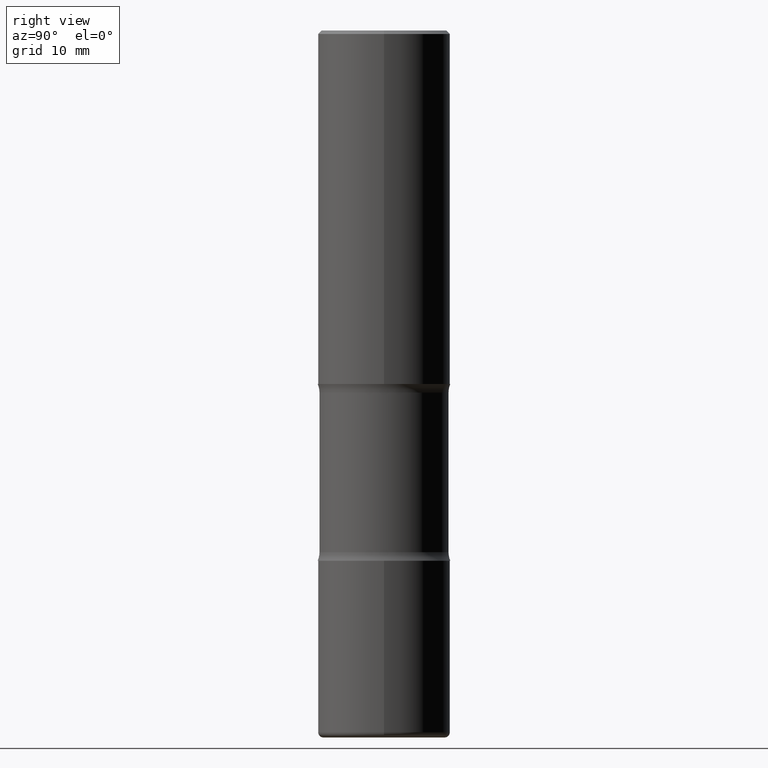
[diagram: clean part render]
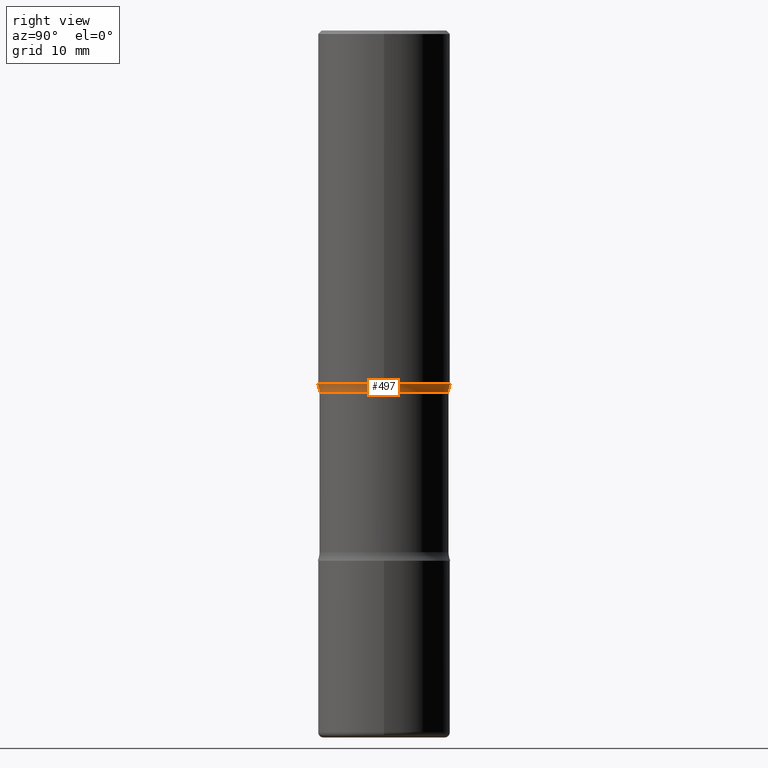
[diagram: same view with one face highlighted and labeled with its STEP entity id]
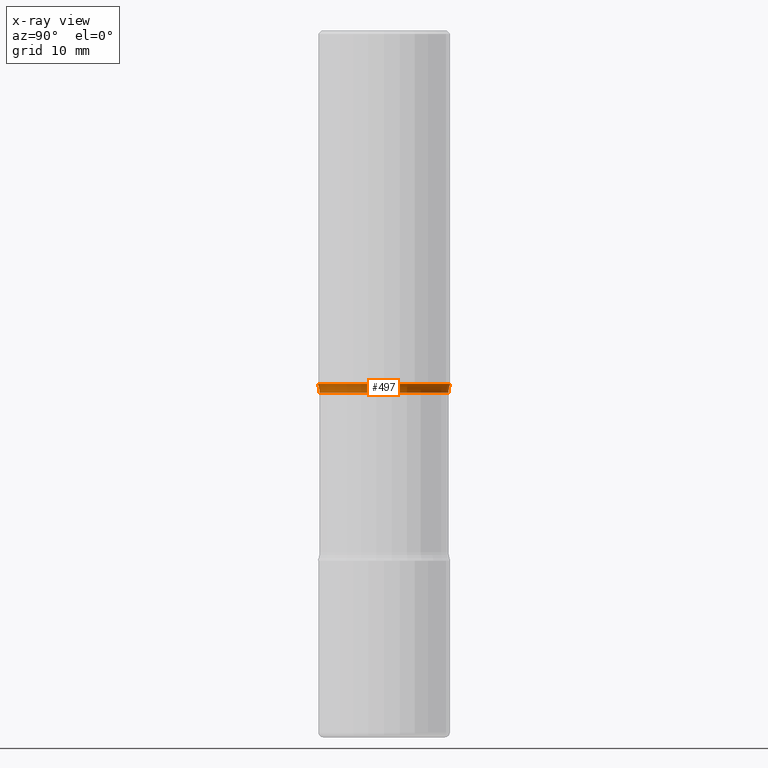
[diagram: x-ray of the same camera — body ghosted, the highlighted face saturated]
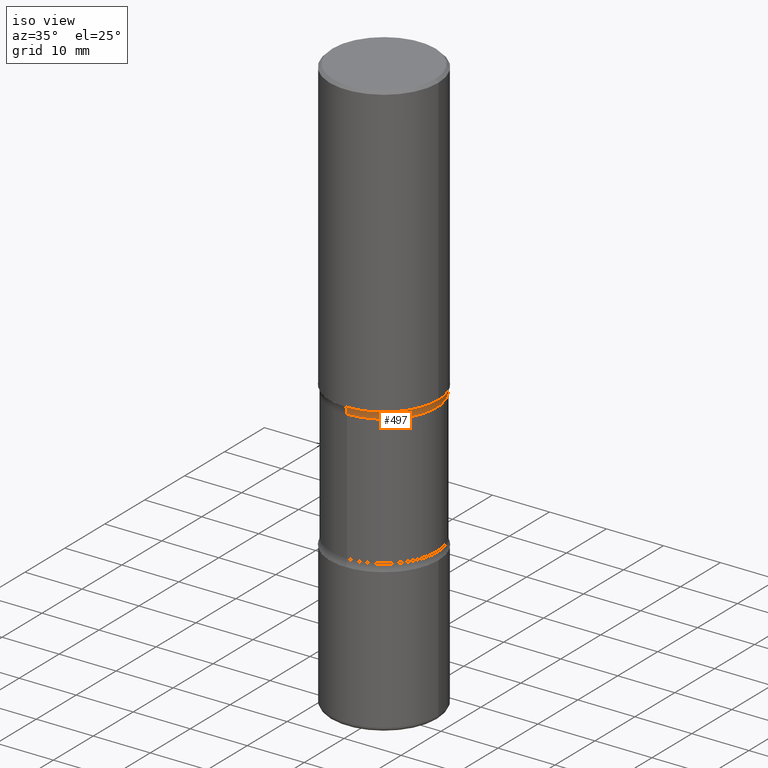
[diagram: same view with one face highlighted and labeled with its STEP entity id]
A machine part, right view. The second image highlights one B-rep face of the part: STEP entity #497.
The next image is the same camera in x-ray: the body ghosted, the highlighted face saturated — about 0% of this face is hidden behind the body in this view.
A second angle (iso view) of the same face is appended — the face is thin or edge-on in the first view.
In plain terms, the highlighted toroidal blend (fillet) surface has major radius 12.446 mm and minor (blend) radius 3.175 mm.
Its self-contained STEP definition (entity closure, byte-faithful):
#1 = CARTESIAN_POINT ( 'NONE',  ( 5.191958536339396350E-29, -6.894495272493812152E-15, -2.048989794855665458 ) ) ;
#2 = CARTESIAN_POINT ( 'NONE',  ( 3.421651712066320939E-15, 0.4899999999999929412, -2.048989794855667235 ) ) ;
#37 = CARTESIAN_POINT ( 'NONE',  ( 5.081490676730588573E-29, -6.710079843915434973E-15, -2.000000000000000000 ) ) ;
#73 = TOROIDAL_SURFACE ( 'NONE', #458, 0.4899999999999998246, 0.1250000000000001110 ) ;
#89 = DIRECTION ( 'NONE',  ( 6.982962677686265922E-15, 1.000000000000000000, -3.742257525567486660E-15 ) ) ;
#99 = CIRCLE ( 'NONE', #409, 0.3649999999999997136 ) ;
#108 = CIRCLE ( 'NONE', #119, 0.1250000000000001110 ) ;
#114 = ORIENTED_EDGE ( 'NONE', *, *, #537, .F. ) ;
#119 = AXIS2_PLACEMENT_3D ( 'NONE', #125, #127, #466 ) ;
#123 = DIRECTION ( 'NONE',  ( 2.254915741824821778E-29, -3.764364172614001380E-15, -1.000000000000000000 ) ) ;
#125 = CARTESIAN_POINT ( 'NONE',  ( -3.361644018907997202E-15, -0.4900000000000067080, -2.048989794855663238 ) ) ;
#127 = DIRECTION ( 'NONE',  ( 1.000000000000000000, -6.860497997771530774E-15, 4.837457028734946037E-29 ) ) ;
#156 = ORIENTED_EDGE ( 'NONE', *, *, #459, .F. ) ;
#171 = CARTESIAN_POINT ( 'NONE',  ( -2.572686749164276610E-15, -0.3750000000000072164, -1.999999999999998668 ) ) ;
#230 = CARTESIAN_POINT ( 'NONE',  ( 2.548781377355537205E-15, 0.3649999999999928302, -2.048989794855666791 ) ) ;
#251 = DIRECTION ( 'NONE',  ( 6.982962677686265922E-15, 1.000000000000000000, -3.764364172614001380E-15 ) ) ;
#260 = CARTESIAN_POINT ( 'NONE',  ( 2.618611004132404053E-15, 0.3749999999999938383, -2.000000000000001332 ) ) ;
#277 = VERTEX_POINT ( 'NONE', #230 ) ;
#295 = FACE_OUTER_BOUND ( 'NONE', #538, .T. ) ;
#320 = DIRECTION ( 'NONE',  ( 2.254915741824821778E-29, -3.764364172614001380E-15, -1.000000000000000000 ) ) ;
#326 = ORIENTED_EDGE ( 'NONE', *, *, #512, .T. ) ;
#333 = CARTESIAN_POINT ( 'NONE',  ( -2.538384259175415591E-15, -0.3650000000000065969, -2.048989794855664126 ) ) ;
#343 = DIRECTION ( 'NONE',  ( 2.254915741824821778E-29, -3.764364172614001380E-15, -1.000000000000000000 ) ) ;
#347 = CIRCLE ( 'NONE', #558, 0.3750000000000004996 ) ;
#356 = CIRCLE ( 'NONE', #469, 0.1250000000000001110 ) ;
#361 = DIRECTION ( 'NONE',  ( 6.982962677686266711E-15, 1.000000000000000000, -3.642463991552346225E-15 ) ) ;
#375 = DIRECTION ( 'NONE',  ( -6.982962677686264344E-15, -1.000000000000000000, 0.000000000000000000 ) ) ;
#390 = EDGE_CURVE ( 'NONE', #498, #433, #347, .T. ) ;
#409 = AXIS2_PLACEMENT_3D ( 'NONE', #1, #343, #89 ) ;
#410 = VERTEX_POINT ( 'NONE', #333 ) ;
#433 = VERTEX_POINT ( 'NONE', #171 ) ;
#458 = AXIS2_PLACEMENT_3D ( 'NONE', #511, #123, #251 ) ;
#459 = EDGE_CURVE ( 'NONE', #277, #410, #99, .T. ) ;
#460 = ORIENTED_EDGE ( 'NONE', *, *, #390, .T. ) ;
#466 = DIRECTION ( 'NONE',  ( 6.860497997771531562E-15, 1.000000000000000000, 0.000000000000000000 ) ) ;
#469 = AXIS2_PLACEMENT_3D ( 'NONE', #2, #474, #375 ) ;
#474 = DIRECTION ( 'NONE',  ( -1.000000000000000000, 6.982962677686265922E-15, -4.883557194083112901E-29 ) ) ;
#497 = ADVANCED_FACE ( 'NONE', ( #295 ), #73, .F. ) ;
#498 = VERTEX_POINT ( 'NONE', #260 ) ;
#511 = CARTESIAN_POINT ( 'NONE',  ( 5.201504553319908584E-29, -6.880824832852173514E-15, -2.048989794855665458 ) ) ;
#512 = EDGE_CURVE ( 'NONE', #277, #498, #356, .T. ) ;
#537 = EDGE_CURVE ( 'NONE', #410, #433, #108, .T. ) ;
#538 = EDGE_LOOP ( 'NONE', ( #114, #156, #326, #460 ) ) ;
#558 = AXIS2_PLACEMENT_3D ( 'NONE', #37, #320, #361 ) ;